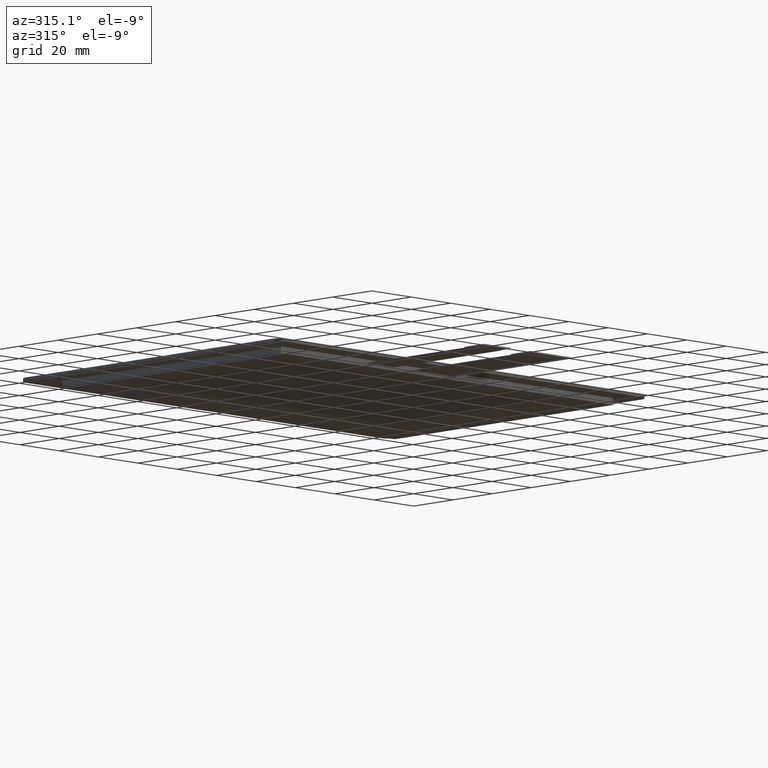
[diagram: clean part render]
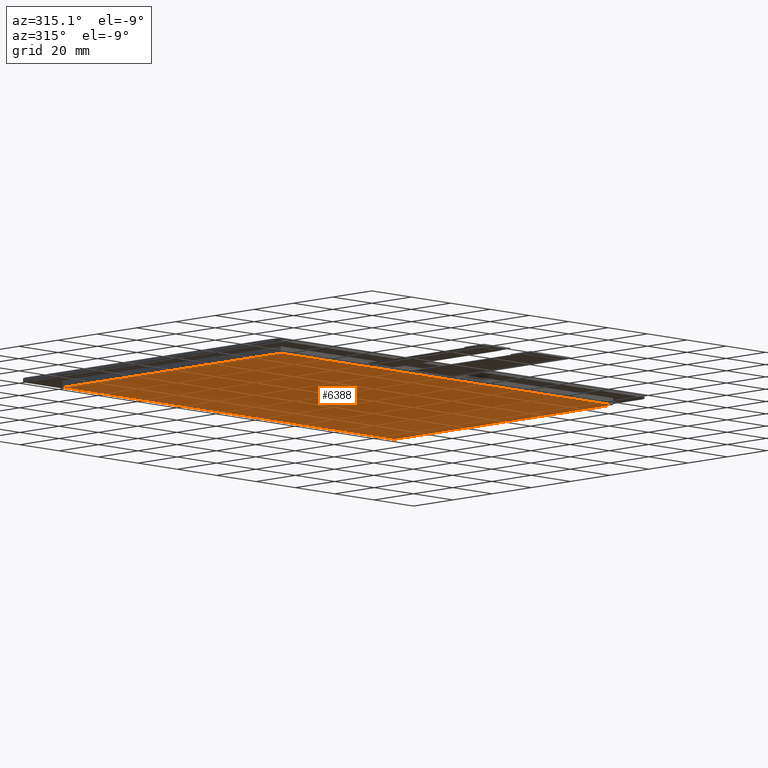
[diagram: same view with one face highlighted and labeled with its STEP entity id]
A machine part, auxiliary view. The second image highlights one B-rep face of the part: STEP entity #6388.
In plain terms, the highlighted planar face has unit normal (0, 0, -1).
Its self-contained STEP definition (entity closure, byte-faithful):
#344=FACE_OUTER_BOUND('',#656,.T.);
#656=EDGE_LOOP('',(#5743,#5744,#5745,#5746));
#1532=LINE('',#10057,#2420);
#1534=LINE('',#10061,#2422);
#1536=LINE('',#10065,#2424);
#1538=LINE('',#10068,#2426);
#2420=VECTOR('',#8240,10.);
#2422=VECTOR('',#8244,10.);
#2424=VECTOR('',#8248,10.);
#2426=VECTOR('',#8252,10.);
#3047=VERTEX_POINT('',#10054);
#3048=VERTEX_POINT('',#10056);
#3049=VERTEX_POINT('',#10060);
#3050=VERTEX_POINT('',#10064);
#3944=EDGE_CURVE('',#3048,#3047,#1532,.T.);
#3946=EDGE_CURVE('',#3049,#3048,#1534,.T.);
#3948=EDGE_CURVE('',#3050,#3049,#1536,.T.);
#3950=EDGE_CURVE('',#3047,#3050,#1538,.T.);
#5743=ORIENTED_EDGE('',*,*,#3950,.T.);
#5744=ORIENTED_EDGE('',*,*,#3948,.T.);
#5745=ORIENTED_EDGE('',*,*,#3946,.T.);
#5746=ORIENTED_EDGE('',*,*,#3944,.T.);
#6064=PLANE('',#6734);
#6388=ADVANCED_FACE('',(#344),#6064,.T.);
#6734=AXIS2_PLACEMENT_3D('',#10069,#8253,#8254);
#8240=DIRECTION('',(-1.59457525978478E-16,1.,0.));
#8244=DIRECTION('',(-1.,-1.57851614875615E-16,0.));
#8248=DIRECTION('',(0.,-1.,0.));
#8252=DIRECTION('',(1.,0.,0.));
#8253=DIRECTION('center_axis',(0.,0.,-1.));
#8254=DIRECTION('ref_axis',(-1.,0.,0.));
#10054=CARTESIAN_POINT('',(-84.5,53.68,-2.5));
#10056=CARTESIAN_POINT('',(-84.5,-57.72,-2.5));
#10057=CARTESIAN_POINT('',(-84.5,53.68,-2.5));
#10060=CARTESIAN_POINT('',(84.3,-57.72,-2.5));
#10061=CARTESIAN_POINT('',(-84.5,-57.72,-2.5));
#10064=CARTESIAN_POINT('',(84.3,53.68,-2.5));
#10065=CARTESIAN_POINT('',(84.3,-57.72,-2.5));
#10068=CARTESIAN_POINT('',(84.3,53.68,-2.5));
#10069=CARTESIAN_POINT('Origin',(-0.0999999999999801,-2.01999999999999,
-2.5));